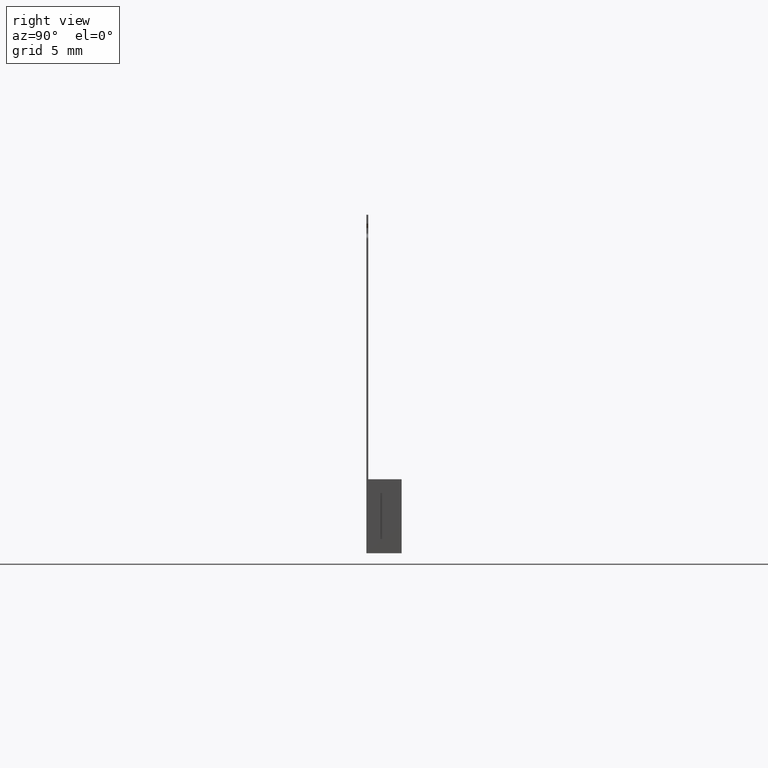
[diagram: clean part render]
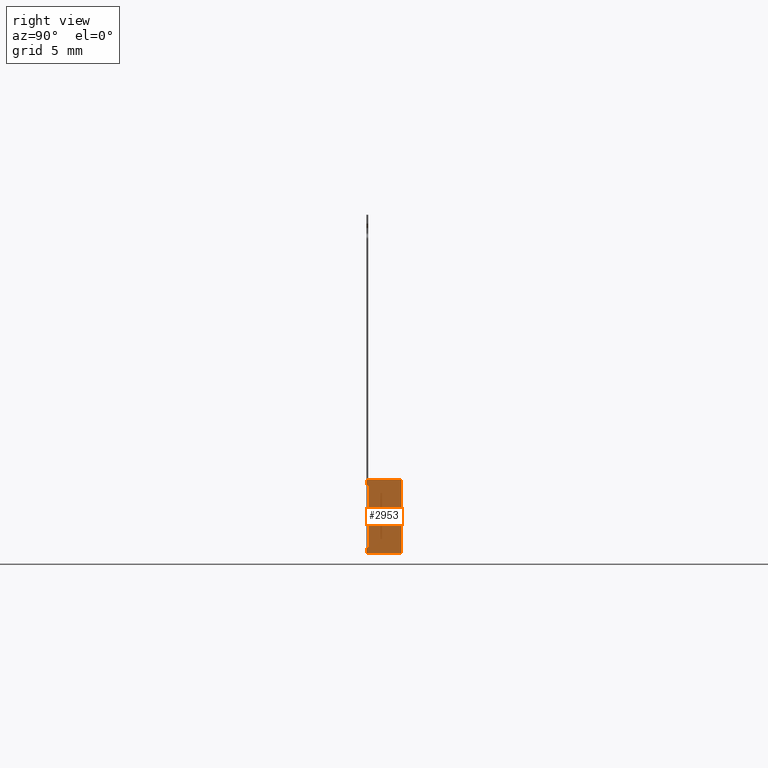
[diagram: same view with one face highlighted and labeled with its STEP entity id]
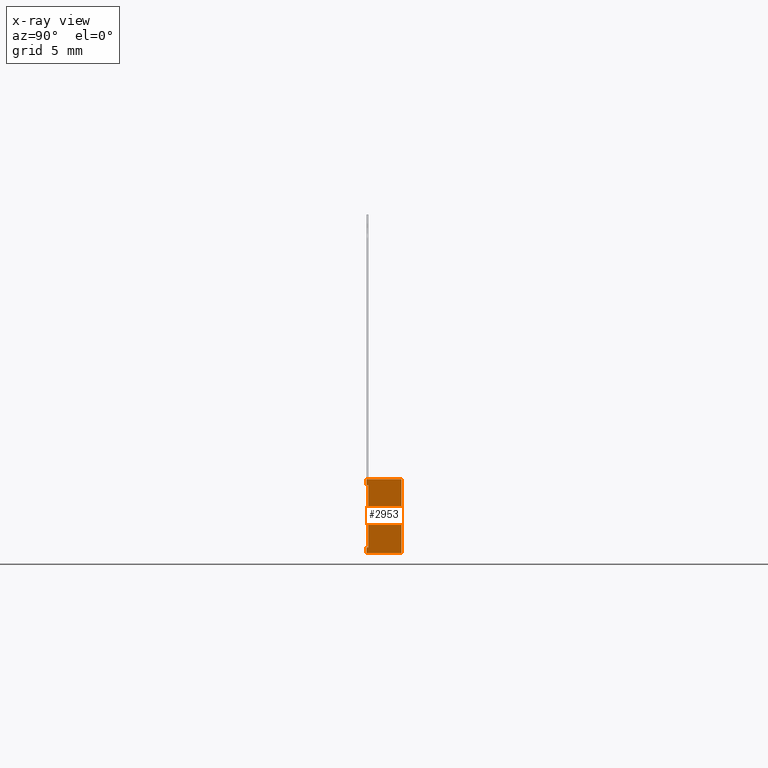
[diagram: x-ray of the same camera — body ghosted, the highlighted face saturated]
A machine part, right view. The second image highlights one B-rep face of the part: STEP entity #2953.
The next image is the same camera in x-ray: the body ghosted, the highlighted face saturated — about 0% of this face is hidden behind the body in this view.
In plain terms, the highlighted planar face has unit normal (-1, 0, 0).
Its self-contained STEP definition (entity closure, byte-faithful):
#85 = ORIENTED_EDGE ( 'NONE', *, *, #389, .F. ) ;
#88 = VERTEX_POINT ( 'NONE', #2903 ) ;
#160 = PLANE ( 'NONE',  #2742 ) ;
#202 = VECTOR ( 'NONE', #941, 1000.000000000000000 ) ;
#215 = CARTESIAN_POINT ( 'NONE',  ( 23.60000000000000900, 1.899999999999999900, 0.0000000000000000000 ) ) ;
#265 = EDGE_CURVE ( 'NONE', #1126, #511, #1482, .T. ) ;
#277 = CARTESIAN_POINT ( 'NONE',  ( 23.60000000000000900, 0.0000000000000000000, 0.0000000000000000000 ) ) ;
#311 = CARTESIAN_POINT ( 'NONE',  ( 23.60000000000000900, 0.1010000000000000100, -0.3101830336703397300 ) ) ;
#337 = CARTESIAN_POINT ( 'NONE',  ( 23.60000000000000900, 0.1010000000000000100, -0.3101830336703397300 ) ) ;
#389 = EDGE_CURVE ( 'NONE', #1819, #1126, #1660, .T. ) ;
#469 = LINE ( 'NONE', #2958, #1120 ) ;
#497 = VECTOR ( 'NONE', #1134, 1000.000000000000000 ) ;
#511 = VERTEX_POINT ( 'NONE', #683 ) ;
#548 = VECTOR ( 'NONE', #3015, 1000.000000000000000 ) ;
#551 = VERTEX_POINT ( 'NONE', #1434 ) ;
#568 = VECTOR ( 'NONE', #1349, 1000.000000000000000 ) ;
#575 = ORIENTED_EDGE ( 'NONE', *, *, #682, .F. ) ;
#614 = LINE ( 'NONE', #277, #1722 ) ;
#637 = VERTEX_POINT ( 'NONE', #843 ) ;
#682 = EDGE_CURVE ( 'NONE', #1699, #551, #1382, .T. ) ;
#683 = CARTESIAN_POINT ( 'NONE',  ( 23.60000000000000100, 0.0000000000000000000, -4.000000000000000000 ) ) ;
#727 = EDGE_CURVE ( 'NONE', #1481, #1699, #2131, .T. ) ;
#843 = CARTESIAN_POINT ( 'NONE',  ( 23.60000000000000900, 0.0000000000000000000, 0.0000000000000000000 ) ) ;
#869 = CARTESIAN_POINT ( 'NONE',  ( 23.60000000000000900, 1.899999999999999900, 0.0000000000000000000 ) ) ;
#941 = DIRECTION ( 'NONE',  ( 0.0000000000000000000, 0.0000000000000000000, -1.000000000000000000 ) ) ;
#969 = EDGE_CURVE ( 'NONE', #637, #511, #614, .T. ) ;
#990 = EDGE_CURVE ( 'NONE', #1819, #637, #469, .T. ) ;
#1097 = ORIENTED_EDGE ( 'NONE', *, *, #990, .T. ) ;
#1120 = VECTOR ( 'NONE', #2998, 1000.000000000000000 ) ;
#1126 = VERTEX_POINT ( 'NONE', #1589 ) ;
#1134 = DIRECTION ( 'NONE',  ( 0.0000000000000000000, -1.000000000000000000, 0.0000000000000000000 ) ) ;
#1147 = CARTESIAN_POINT ( 'NONE',  ( 23.60000000000000900, 0.001000000000000000000, -0.3101830336703397300 ) ) ;
#1177 = ORIENTED_EDGE ( 'NONE', *, *, #2714, .T. ) ;
#1210 = FACE_BOUND ( 'NONE', #1993, .T. ) ;
#1217 = LINE ( 'NONE', #1440, #202 ) ;
#1245 = DIRECTION ( 'NONE',  ( 0.0000000000000000000, -1.000000000000000000, 0.0000000000000000000 ) ) ;
#1300 = VECTOR ( 'NONE', #1245, 1000.000000000000000 ) ;
#1346 = EDGE_LOOP ( 'NONE', ( #2379, #2209, #85, #1097 ) ) ;
#1349 = DIRECTION ( 'NONE',  ( -0.0000000000000000000, -1.000000000000000000, -0.0000000000000000000 ) ) ;
#1380 = DIRECTION ( 'NONE',  ( 1.734723475976807300E-015, 0.0000000000000000000, 1.000000000000000000 ) ) ;
#1382 = LINE ( 'NONE', #1147, #548 ) ;
#1434 = CARTESIAN_POINT ( 'NONE',  ( 23.60000000000000900, 0.001000000000000000000, -3.696989483164532700 ) ) ;
#1440 = CARTESIAN_POINT ( 'NONE',  ( 23.60000000000000900, 0.1010000000000000100, -0.3101830336703397300 ) ) ;
#1456 = DIRECTION ( 'NONE',  ( -1.000000000000000000, 0.0000000000000000000, 1.734723475976807300E-015 ) ) ;
#1481 = VERTEX_POINT ( 'NONE', #311 ) ;
#1482 = LINE ( 'NONE', #1539, #568 ) ;
#1539 = CARTESIAN_POINT ( 'NONE',  ( 23.60000000000000100, 1.899999999999999900, -4.000000000000000000 ) ) ;
#1589 = CARTESIAN_POINT ( 'NONE',  ( 23.60000000000000100, 1.899999999999999900, -4.000000000000000000 ) ) ;
#1660 = LINE ( 'NONE', #215, #1989 ) ;
#1699 = VERTEX_POINT ( 'NONE', #2157 ) ;
#1722 = VECTOR ( 'NONE', #1932, 1000.000000000000000 ) ;
#1819 = VERTEX_POINT ( 'NONE', #2203 ) ;
#1932 = DIRECTION ( 'NONE',  ( -1.734723475976807100E-015, 0.0000000000000000000, -1.000000000000000000 ) ) ;
#1989 = VECTOR ( 'NONE', #2818, 1000.000000000000000 ) ;
#1993 = EDGE_LOOP ( 'NONE', ( #2000, #1177, #575, #2736 ) ) ;
#2000 = ORIENTED_EDGE ( 'NONE', *, *, #2122, .T. ) ;
#2090 = CARTESIAN_POINT ( 'NONE',  ( 23.60000000000000900, 0.1010000000000000100, -3.696989483164532700 ) ) ;
#2122 = EDGE_CURVE ( 'NONE', #1481, #88, #1217, .T. ) ;
#2131 = LINE ( 'NONE', #337, #1300 ) ;
#2157 = CARTESIAN_POINT ( 'NONE',  ( 23.60000000000000900, 0.0009999999999999158900, -0.3101830336703397300 ) ) ;
#2203 = CARTESIAN_POINT ( 'NONE',  ( 23.60000000000000900, 1.899999999999999900, 0.0000000000000000000 ) ) ;
#2209 = ORIENTED_EDGE ( 'NONE', *, *, #265, .F. ) ;
#2379 = ORIENTED_EDGE ( 'NONE', *, *, #969, .T. ) ;
#2476 = FACE_OUTER_BOUND ( 'NONE', #1346, .T. ) ;
#2714 = EDGE_CURVE ( 'NONE', #88, #551, #2829, .T. ) ;
#2736 = ORIENTED_EDGE ( 'NONE', *, *, #727, .F. ) ;
#2742 = AXIS2_PLACEMENT_3D ( 'NONE', #869, #1456, #1380 ) ;
#2818 = DIRECTION ( 'NONE',  ( -1.734723475976807100E-015, 0.0000000000000000000, -1.000000000000000000 ) ) ;
#2829 = LINE ( 'NONE', #2090, #497 ) ;
#2903 = CARTESIAN_POINT ( 'NONE',  ( 23.60000000000000900, 0.1010000000000000100, -3.696989483164532700 ) ) ;
#2953 = ADVANCED_FACE ( 'NONE', ( #2476, #1210 ), #160, .F. ) ;
#2958 = CARTESIAN_POINT ( 'NONE',  ( 23.60000000000000900, 1.899999999999999900, 0.0000000000000000000 ) ) ;
#2998 = DIRECTION ( 'NONE',  ( -0.0000000000000000000, -1.000000000000000000, -0.0000000000000000000 ) ) ;
#3015 = DIRECTION ( 'NONE',  ( 0.0000000000000000000, 0.0000000000000000000, -1.000000000000000000 ) ) ;